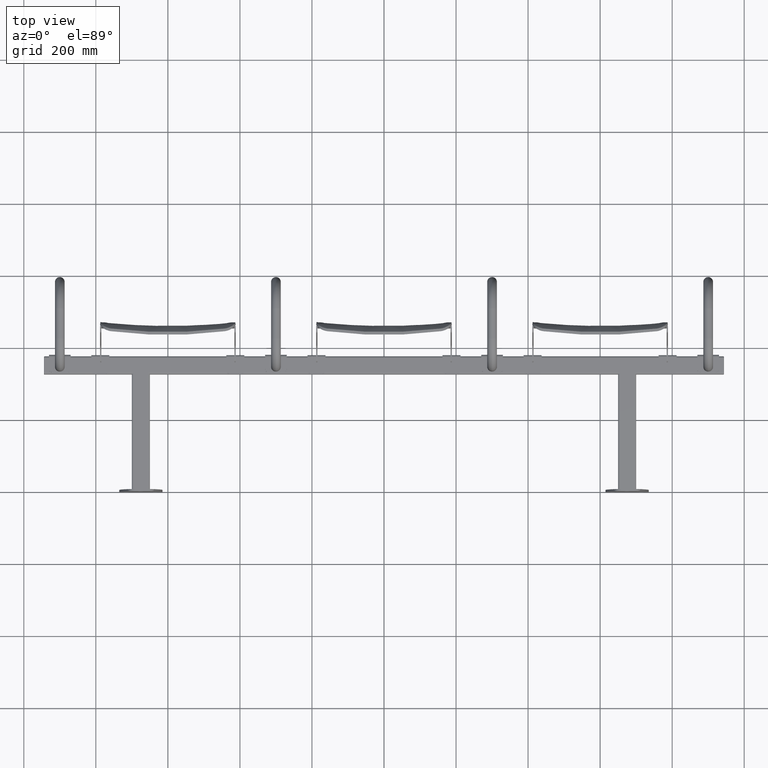
[diagram: clean part render]
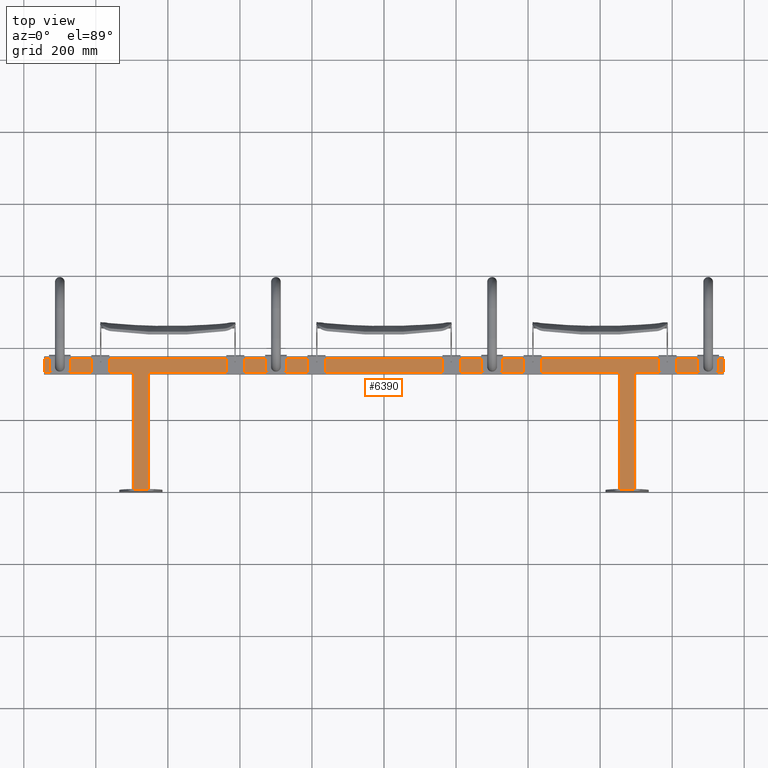
[diagram: same view with one face highlighted and labeled with its STEP entity id]
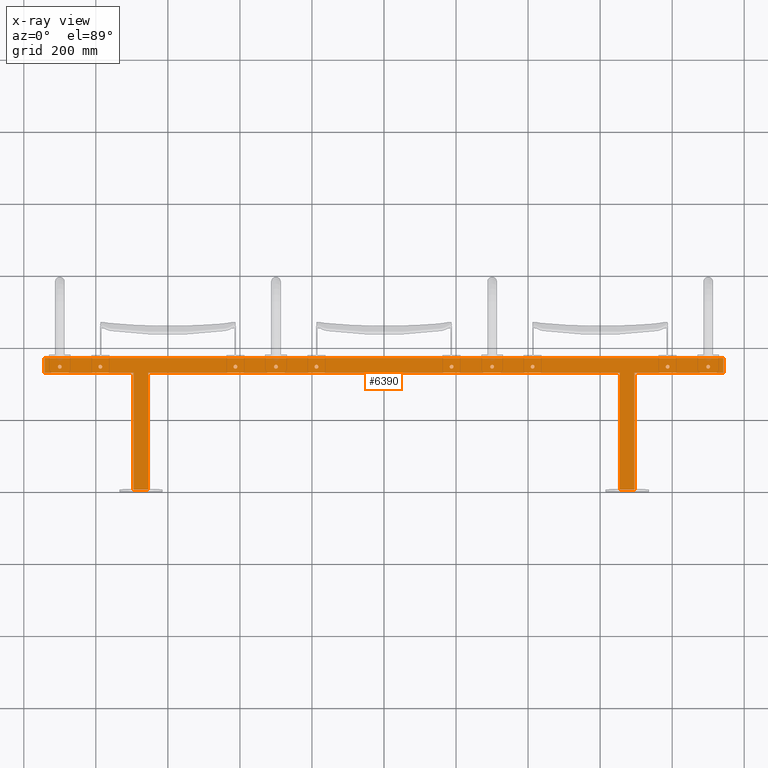
[diagram: x-ray of the same camera — body ghosted, the highlighted face saturated]
A machine part, top view. The second image highlights one B-rep face of the part: STEP entity #6390.
The next image is the same camera in x-ray: the body ghosted, the highlighted face saturated — about 1% of this face is hidden behind the body in this view.
In plain terms, the highlighted planar face has unit normal (0, 0, -1).
Its self-contained STEP definition (entity closure, byte-faithful):
#1404 = EDGE_CURVE ( 'NONE', #13371, #13397, #10330, .T. ) ;
#1408 = EDGE_CURVE ( 'NONE', #7263, #7281, #10335, .T. ) ;
#1419 = EDGE_CURVE ( 'NONE', #7280, #7206, #10351, .T. ) ;
#1423 = EDGE_CURVE ( 'NONE', #13499, #7233, #10349, .T. ) ;
#1442 = EDGE_CURVE ( 'NONE', #7294, #13480, #7566, .T. ) ;
#1447 = EDGE_CURVE ( 'NONE', #13454, #13415, #7563, .T. ) ;
#1455 = EDGE_CURVE ( 'NONE', #7272, #13437, #7570, .T. ) ;
#1464 = EDGE_CURVE ( 'NONE', #13333, #13332, #7579, .T. ) ;
#1470 = EDGE_CURVE ( 'NONE', #13376, #7270, #7581, .T. ) ;
#1504 = EDGE_CURVE ( 'NONE', #13405, #7289, #7611, .T. ) ;
#1794 = FACE_BOUND ( 'NONE', #5955, .T. ) ;
#1795 = FACE_BOUND ( 'NONE', #5879, .T. ) ;
#1796 = FACE_BOUND ( 'NONE', #9207, .T. ) ;
#1797 = FACE_BOUND ( 'NONE', #8984, .T. ) ;
#1798 = FACE_BOUND ( 'NONE', #5957, .T. ) ;
#1799 = FACE_OUTER_BOUND ( 'NONE', #9216, .T. ) ;
#1800 = FACE_BOUND ( 'NONE', #8992, .T. ) ;
#1801 = FACE_BOUND ( 'NONE', #5898, .T. ) ;
#1802 = FACE_BOUND ( 'NONE', #8983, .T. ) ;
#1803 = FACE_BOUND ( 'NONE', #8975, .T. ) ;
#1804 = FACE_BOUND ( 'NONE', #8964, .T. ) ;
#2910 = PLANE ( 'NONE',  #6801 ) ;
#2912 = DIRECTION ( 'NONE',  ( 0.0000000000000000000, 0.0000000000000000000, -1.000000000000000000 ) ) ;
#2917 = CARTESIAN_POINT ( 'NONE',  ( 0.0000000000000000000, 0.0000000000000000000, 25.00000000000000000 ) ) ;
#2918 = DIRECTION ( 'NONE',  ( -1.000000000000000000, 0.0000000000000000000, -0.0000000000000000000 ) ) ;
#3147 = DIRECTION ( 'NONE',  ( 1.000000000000000000, 0.0000000000000000000, 0.0000000000000000000 ) ) ;
#3151 = DIRECTION ( 'NONE',  ( 0.0000000000000000000, 0.0000000000000000000, 1.000000000000000000 ) ) ;
#3156 = CARTESIAN_POINT ( 'NONE',  ( 412.5000000000000000, 346.9999999999999400, 25.00000000000000000 ) ) ;
#3176 = DIRECTION ( 'NONE',  ( 1.000000000000000000, 0.0000000000000000000, 0.0000000000000000000 ) ) ;
#3177 = DIRECTION ( 'NONE',  ( 0.0000000000000000000, 0.0000000000000000000, 1.000000000000000000 ) ) ;
#3178 = CARTESIAN_POINT ( 'NONE',  ( -900.0000000000000000, 347.0000000000000000, 25.00000000000000000 ) ) ;
#3181 = DIRECTION ( 'NONE',  ( 1.000000000000000000, 0.0000000000000000000, 0.0000000000000000000 ) ) ;
#3184 = DIRECTION ( 'NONE',  ( 0.0000000000000000000, 0.0000000000000000000, 1.000000000000000000 ) ) ;
#3189 = CARTESIAN_POINT ( 'NONE',  ( -300.0000000000000600, 347.0000000000000000, 25.00000000000000000 ) ) ;
#3410 = CARTESIAN_POINT ( 'NONE',  ( 299.9999999999999400, 347.0000000000000000, 25.00000000000000000 ) ) ;
#3411 = DIRECTION ( 'NONE',  ( 0.0000000000000000000, 0.0000000000000000000, 1.000000000000000000 ) ) ;
#3412 = DIRECTION ( 'NONE',  ( 1.000000000000000000, 0.0000000000000000000, 0.0000000000000000000 ) ) ;
#3413 = CARTESIAN_POINT ( 'NONE',  ( 655.0000000000000000, -4.544975507059234600E-013, 25.00000000000000000 ) ) ;
#3414 = DIRECTION ( 'NONE',  ( -6.938893903907228400E-016, -1.000000000000000000, 0.0000000000000000000 ) ) ;
#3423 = CARTESIAN_POINT ( 'NONE',  ( -655.0000000000000000, -4.544975507059234600E-013, 25.00000000000000000 ) ) ;
#3424 = DIRECTION ( 'NONE',  ( -6.938893903907228400E-016, 1.000000000000000000, 0.0000000000000000000 ) ) ;
#3503 = CARTESIAN_POINT ( 'NONE',  ( -294.7500000000000600, 347.0000000000000000, 25.00000000000000000 ) ) ;
#3508 = CARTESIAN_POINT ( 'NONE',  ( -305.2500000000000000, 347.0000000000000000, 25.00000000000000000 ) ) ;
#3518 = CARTESIAN_POINT ( 'NONE',  ( -942.0000000000000000, 371.0000000000000000, 25.00000000000000000 ) ) ;
#3529 = CARTESIAN_POINT ( 'NONE',  ( -695.0000000000000000, 6.000000000000002700, 25.00000000000000000 ) ) ;
#3534 = CARTESIAN_POINT ( 'NONE',  ( -655.0000000000000000, 6.000000000000000000, 25.00000000000000000 ) ) ;
#3544 = CARTESIAN_POINT ( 'NONE',  ( -792.7500000000001100, 346.9999999999999400, 25.00000000000000000 ) ) ;
#3549 = CARTESIAN_POINT ( 'NONE',  ( 407.2499999999999400, 346.9999999999999400, 25.00000000000000000 ) ) ;
#3570 = CARTESIAN_POINT ( 'NONE',  ( -782.2499999999998900, 346.9999999999999400, 25.00000000000000000 ) ) ;
#3578 = CARTESIAN_POINT ( 'NONE',  ( -905.2500000000000000, 347.0000000000000000, 25.00000000000000000 ) ) ;
#3588 = CARTESIAN_POINT ( 'NONE',  ( 905.2499999999997700, 347.0000000000000000, 25.00000000000000000 ) ) ;
#3589 = CARTESIAN_POINT ( 'NONE',  ( 942.0000000000000000, 371.0000000000000000, 25.00000000000000000 ) ) ;
#3610 = CARTESIAN_POINT ( 'NONE',  ( 792.7500000000000000, 347.0000000000000000, 25.00000000000000000 ) ) ;
#3627 = CARTESIAN_POINT ( 'NONE',  ( 894.7499999999997700, 347.0000000000000000, 25.00000000000000000 ) ) ;
#3646 = CARTESIAN_POINT ( 'NONE',  ( -694.9999999999998900, 331.0000000000000000, 25.00000000000000000 ) ) ;
#3653 = CARTESIAN_POINT ( 'NONE',  ( 305.2499999999998900, 347.0000000000000000, 25.00000000000000000 ) ) ;
#3672 = CARTESIAN_POINT ( 'NONE',  ( -192.7500000000000600, 346.9999999999999400, 25.00000000000000000 ) ) ;
#4814 = DIRECTION ( 'NONE',  ( 0.0000000000000000000, 0.0000000000000000000, 1.000000000000000000 ) ) ;
#4815 = CARTESIAN_POINT ( 'NONE',  ( 787.5000000000000000, 347.0000000000000000, 25.00000000000000000 ) ) ;
#4817 = DIRECTION ( 'NONE',  ( 1.000000000000000000, 0.0000000000000000000, 0.0000000000000000000 ) ) ;
#4819 = DIRECTION ( 'NONE',  ( 0.0000000000000000000, 0.0000000000000000000, 1.000000000000000000 ) ) ;
#4822 = CARTESIAN_POINT ( 'NONE',  ( 899.9999999999997700, 347.0000000000000000, 25.00000000000000000 ) ) ;
#4964 = DIRECTION ( 'NONE',  ( 1.000000000000000000, 0.0000000000000000000, 0.0000000000000000000 ) ) ;
#4965 = DIRECTION ( 'NONE',  ( 0.0000000000000000000, 0.0000000000000000000, 1.000000000000000000 ) ) ;
#4966 = CARTESIAN_POINT ( 'NONE',  ( 299.9999999999999400, 347.0000000000000000, 25.00000000000000000 ) ) ;
#4967 = DIRECTION ( 'NONE',  ( 1.000000000000000000, 0.0000000000000000000, 0.0000000000000000000 ) ) ;
#4990 = DIRECTION ( 'NONE',  ( 1.000000000000000000, 0.0000000000000000000, 0.0000000000000000000 ) ) ;
#4991 = DIRECTION ( 'NONE',  ( 0.0000000000000000000, 0.0000000000000000000, 1.000000000000000000 ) ) ;
#4992 = CARTESIAN_POINT ( 'NONE',  ( -187.5000000000000000, 346.9999999999999400, 25.00000000000000000 ) ) ;
#4995 = DIRECTION ( 'NONE',  ( 1.000000000000000000, 0.0000000000000000000, 0.0000000000000000000 ) ) ;
#4996 = DIRECTION ( 'NONE',  ( 0.0000000000000000000, 0.0000000000000000000, 1.000000000000000000 ) ) ;
#4997 = CARTESIAN_POINT ( 'NONE',  ( -412.5000000000000000, 347.0000000000000000, 25.00000000000000000 ) ) ;
#5007 = DIRECTION ( 'NONE',  ( 1.000000000000000000, 0.0000000000000000000, 0.0000000000000000000 ) ) ;
#5009 = DIRECTION ( 'NONE',  ( 0.0000000000000000000, 0.0000000000000000000, 1.000000000000000000 ) ) ;
#5010 = CARTESIAN_POINT ( 'NONE',  ( 187.5000000000000000, 347.0000000000000000, 25.00000000000000000 ) ) ;
#5014 = DIRECTION ( 'NONE',  ( 1.000000000000000000, 0.0000000000000000000, 0.0000000000000000000 ) ) ;
#5015 = DIRECTION ( 'NONE',  ( 0.0000000000000000000, 0.0000000000000000000, 1.000000000000000000 ) ) ;
#5016 = CARTESIAN_POINT ( 'NONE',  ( -787.5000000000000000, 346.9999999999999400, 25.00000000000000000 ) ) ;
#5879 = EDGE_LOOP ( 'NONE', ( #9260, #9251 ) ) ;
#5898 = EDGE_LOOP ( 'NONE', ( #8869, #8870 ) ) ;
#5955 = EDGE_LOOP ( 'NONE', ( #9250, #9243 ) ) ;
#5957 = EDGE_LOOP ( 'NONE', ( #9242, #9295 ) ) ;
#6390 = ADVANCED_FACE ( 'NONE', ( #1794, #1798, #1795, #1797, #1796, #1799, #1800, #1801, #1802, #1803, #1804 ), #2910, .F. ) ;
#6801 = AXIS2_PLACEMENT_3D ( 'NONE', #2917, #2912, #2918 ) ;
#6854 = EDGE_CURVE ( 'NONE', #13332, #13333, #13133, .T. ) ;
#6855 = EDGE_CURVE ( 'NONE', #13415, #13454, #13131, .T. ) ;
#7135 = AXIS2_PLACEMENT_3D ( 'NONE', #5016, #5015, #5014 ) ;
#7136 = AXIS2_PLACEMENT_3D ( 'NONE', #5010, #5009, #5007 ) ;
#7138 = AXIS2_PLACEMENT_3D ( 'NONE', #4997, #4996, #4995 ) ;
#7139 = AXIS2_PLACEMENT_3D ( 'NONE', #4992, #4991, #4990 ) ;
#7145 = AXIS2_PLACEMENT_3D ( 'NONE', #4966, #4965, #4964 ) ;
#7147 = AXIS2_PLACEMENT_3D ( 'NONE', #4822, #4819, #4817 ) ;
#7148 = AXIS2_PLACEMENT_3D ( 'NONE', #4815, #4814, #4967 ) ;
#7151 = AXIS2_PLACEMENT_3D ( 'NONE', #3189, #3184, #3181 ) ;
#7152 = AXIS2_PLACEMENT_3D ( 'NONE', #3156, #3151, #3147 ) ;
#7158 = AXIS2_PLACEMENT_3D ( 'NONE', #3178, #3177, #3176 ) ;
#7172 = ORIENTED_EDGE ( 'NONE', *, *, #7548, .T. ) ;
#7206 = VERTEX_POINT ( 'NONE', #10482 ) ;
#7220 = VERTEX_POINT ( 'NONE', #10500 ) ;
#7231 = VERTEX_POINT ( 'NONE', #10511 ) ;
#7233 = VERTEX_POINT ( 'NONE', #10513 ) ;
#7238 = VERTEX_POINT ( 'NONE', #10518 ) ;
#7239 = VERTEX_POINT ( 'NONE', #10519 ) ;
#7241 = VERTEX_POINT ( 'NONE', #10521 ) ;
#7263 = VERTEX_POINT ( 'NONE', #10543 ) ;
#7266 = VERTEX_POINT ( 'NONE', #10546 ) ;
#7270 = VERTEX_POINT ( 'NONE', #10550 ) ;
#7272 = VERTEX_POINT ( 'NONE', #10552 ) ;
#7280 = VERTEX_POINT ( 'NONE', #10560 ) ;
#7281 = VERTEX_POINT ( 'NONE', #10561 ) ;
#7289 = VERTEX_POINT ( 'NONE', #10569 ) ;
#7294 = VERTEX_POINT ( 'NONE', #10574 ) ;
#7311 = VERTEX_POINT ( 'NONE', #10591 ) ;
#7492 = EDGE_CURVE ( 'NONE', #7281, #7263, #11604, .T. ) ;
#7499 = EDGE_CURVE ( 'NONE', #7220, #7241, #11603, .T. ) ;
#7502 = EDGE_CURVE ( 'NONE', #13437, #7272, #11617, .T. ) ;
#7508 = EDGE_CURVE ( 'NONE', #7289, #13405, #11625, .T. ) ;
#7509 = EDGE_CURVE ( 'NONE', #7238, #7239, #11629, .T. ) ;
#7510 = EDGE_CURVE ( 'NONE', #7206, #7280, #11630, .T. ) ;
#7521 = EDGE_CURVE ( 'NONE', #7266, #7220, #11651, .T. ) ;
#7523 = EDGE_CURVE ( 'NONE', #13473, #13356, #11655, .T. ) ;
#7544 = EDGE_CURVE ( 'NONE', #13356, #13361, #11690, .T. ) ;
#7546 = EDGE_CURVE ( 'NONE', #7311, #13473, #11693, .T. ) ;
#7547 = EDGE_CURVE ( 'NONE', #13345, #7311, #11694, .T. ) ;
#7548 = EDGE_CURVE ( 'NONE', #13416, #13345, #11696, .T. ) ;
#7549 = EDGE_CURVE ( 'NONE', #7231, #13416, #11698, .T. ) ;
#7550 = EDGE_CURVE ( 'NONE', #7241, #7231, #11700, .T. ) ;
#7551 = EDGE_CURVE ( 'NONE', #13397, #13371, #11702, .T. ) ;
#7552 = EDGE_CURVE ( 'NONE', #7233, #13499, #11704, .T. ) ;
#7553 = EDGE_CURVE ( 'NONE', #7270, #13376, #11705, .T. ) ;
#7563 = CIRCLE ( 'NONE', #7147, 5.249999999999976900 ) ;
#7566 = CIRCLE ( 'NONE', #7145, 5.249999999999976900 ) ;
#7570 = CIRCLE ( 'NONE', #7148, 5.249999999999976900 ) ;
#7579 = CIRCLE ( 'NONE', #7151, 5.249999999999976900 ) ;
#7581 = CIRCLE ( 'NONE', #7152, 5.250000000000032000 ) ;
#7611 = CIRCLE ( 'NONE', #7158, 5.249999999999976900 ) ;
#8864 = ORIENTED_EDGE ( 'NONE', *, *, #1419, .F. ) ;
#8865 = ORIENTED_EDGE ( 'NONE', *, *, #7510, .F. ) ;
#8866 = ORIENTED_EDGE ( 'NONE', *, *, #1504, .F. ) ;
#8867 = ORIENTED_EDGE ( 'NONE', *, *, #7508, .F. ) ;
#8869 = ORIENTED_EDGE ( 'NONE', *, *, #1408, .F. ) ;
#8870 = ORIENTED_EDGE ( 'NONE', *, *, #7492, .F. ) ;
#8875 = ORIENTED_EDGE ( 'NONE', *, *, #1455, .F. ) ;
#8876 = ORIENTED_EDGE ( 'NONE', *, *, #7502, .F. ) ;
#8877 = ORIENTED_EDGE ( 'NONE', *, *, #1442, .F. ) ;
#8878 = ORIENTED_EDGE ( 'NONE', *, *, #9051, .F. ) ;
#8964 = EDGE_LOOP ( 'NONE', ( #8875, #8876 ) ) ;
#8975 = EDGE_LOOP ( 'NONE', ( #8877, #8878 ) ) ;
#8983 = EDGE_LOOP ( 'NONE', ( #8866, #8867 ) ) ;
#8984 = EDGE_LOOP ( 'NONE', ( #9245, #9241 ) ) ;
#8992 = EDGE_LOOP ( 'NONE', ( #8864, #8865 ) ) ;
#9051 = EDGE_CURVE ( 'NONE', #13480, #7294, #12967, .T. ) ;
#9053 = EDGE_CURVE ( 'NONE', #7239, #7266, #12970, .T. ) ;
#9061 = EDGE_CURVE ( 'NONE', #13361, #7238, #12983, .T. ) ;
#9207 = EDGE_LOOP ( 'NONE', ( #9237, #9220 ) ) ;
#9216 = EDGE_LOOP ( 'NONE', ( #9229, #9236, #7172, #9302, #9350, #9226, #9244, #9246, #9238, #9233, #9219, #9330 ) ) ;
#9219 = ORIENTED_EDGE ( 'NONE', *, *, #7521, .T. ) ;
#9220 = ORIENTED_EDGE ( 'NONE', *, *, #7551, .F. ) ;
#9226 = ORIENTED_EDGE ( 'NONE', *, *, #7523, .T. ) ;
#9229 = ORIENTED_EDGE ( 'NONE', *, *, #7550, .T. ) ;
#9233 = ORIENTED_EDGE ( 'NONE', *, *, #9053, .T. ) ;
#9236 = ORIENTED_EDGE ( 'NONE', *, *, #7549, .T. ) ;
#9237 = ORIENTED_EDGE ( 'NONE', *, *, #1404, .F. ) ;
#9238 = ORIENTED_EDGE ( 'NONE', *, *, #7509, .T. ) ;
#9241 = ORIENTED_EDGE ( 'NONE', *, *, #7552, .F. ) ;
#9242 = ORIENTED_EDGE ( 'NONE', *, *, #1464, .F. ) ;
#9243 = ORIENTED_EDGE ( 'NONE', *, *, #6855, .F. ) ;
#9244 = ORIENTED_EDGE ( 'NONE', *, *, #7544, .T. ) ;
#9245 = ORIENTED_EDGE ( 'NONE', *, *, #1423, .F. ) ;
#9246 = ORIENTED_EDGE ( 'NONE', *, *, #9061, .T. ) ;
#9250 = ORIENTED_EDGE ( 'NONE', *, *, #1447, .F. ) ;
#9251 = ORIENTED_EDGE ( 'NONE', *, *, #7553, .F. ) ;
#9260 = ORIENTED_EDGE ( 'NONE', *, *, #1470, .F. ) ;
#9295 = ORIENTED_EDGE ( 'NONE', *, *, #6854, .F. ) ;
#9302 = ORIENTED_EDGE ( 'NONE', *, *, #7547, .T. ) ;
#9330 = ORIENTED_EDGE ( 'NONE', *, *, #7499, .T. ) ;
#9350 = ORIENTED_EDGE ( 'NONE', *, *, #7546, .T. ) ;
#9772 = CARTESIAN_POINT ( 'NONE',  ( -300.0000000000000600, 347.0000000000000000, 25.00000000000000000 ) ) ;
#9773 = DIRECTION ( 'NONE',  ( 0.0000000000000000000, 0.0000000000000000000, 1.000000000000000000 ) ) ;
#9774 = DIRECTION ( 'NONE',  ( 1.000000000000000000, 0.0000000000000000000, 0.0000000000000000000 ) ) ;
#9775 = CARTESIAN_POINT ( 'NONE',  ( 899.9999999999997700, 347.0000000000000000, 25.00000000000000000 ) ) ;
#9776 = DIRECTION ( 'NONE',  ( 0.0000000000000000000, 0.0000000000000000000, 1.000000000000000000 ) ) ;
#9777 = DIRECTION ( 'NONE',  ( 1.000000000000000000, 0.0000000000000000000, 0.0000000000000000000 ) ) ;
#10330 = CIRCLE ( 'NONE', #7135, 5.250000000000087900 ) ;
#10335 = CIRCLE ( 'NONE', #7136, 5.250000000000004400 ) ;
#10349 = CIRCLE ( 'NONE', #7139, 5.250000000000060400 ) ;
#10351 = CIRCLE ( 'NONE', #7138, 5.249999999999976900 ) ;
#10482 = CARTESIAN_POINT ( 'NONE',  ( -407.2500000000000000, 347.0000000000000000, 25.00000000000000000 ) ) ;
#10500 = CARTESIAN_POINT ( 'NONE',  ( 695.0000000000001100, 6.000000000000002700, 25.00000000000000000 ) ) ;
#10511 = CARTESIAN_POINT ( 'NONE',  ( 942.0000000000000000, 331.0000000000000000, 25.00000000000000000 ) ) ;
#10513 = CARTESIAN_POINT ( 'NONE',  ( -182.2499999999999400, 346.9999999999999400, 25.00000000000000000 ) ) ;
#10518 = CARTESIAN_POINT ( 'NONE',  ( -655.0000000000002300, 331.0000000000000000, 25.00000000000000000 ) ) ;
#10519 = CARTESIAN_POINT ( 'NONE',  ( 655.0000000000002300, 331.0000000000000000, 25.00000000000000000 ) ) ;
#10521 = CARTESIAN_POINT ( 'NONE',  ( 694.9999999999998900, 331.0000000000000000, 25.00000000000000000 ) ) ;
#10543 = CARTESIAN_POINT ( 'NONE',  ( 182.2500000000000000, 347.0000000000000000, 25.00000000000000000 ) ) ;
#10546 = CARTESIAN_POINT ( 'NONE',  ( 655.0000000000000000, 6.000000000000002700, 25.00000000000000000 ) ) ;
#10550 = CARTESIAN_POINT ( 'NONE',  ( 417.7500000000000000, 346.9999999999999400, 25.00000000000000000 ) ) ;
#10552 = CARTESIAN_POINT ( 'NONE',  ( 782.2500000000000000, 347.0000000000000000, 25.00000000000000000 ) ) ;
#10560 = CARTESIAN_POINT ( 'NONE',  ( -417.7499999999999400, 347.0000000000000000, 25.00000000000000000 ) ) ;
#10561 = CARTESIAN_POINT ( 'NONE',  ( 192.7500000000000000, 347.0000000000000000, 25.00000000000000000 ) ) ;
#10569 = CARTESIAN_POINT ( 'NONE',  ( -894.7500000000000000, 347.0000000000000000, 25.00000000000000000 ) ) ;
#10574 = CARTESIAN_POINT ( 'NONE',  ( 294.7499999999999400, 347.0000000000000000, 25.00000000000000000 ) ) ;
#10591 = CARTESIAN_POINT ( 'NONE',  ( -942.0000000000000000, 331.0000000000000000, 25.00000000000000000 ) ) ;
#10598 = CARTESIAN_POINT ( 'NONE',  ( 187.5000000000000000, 347.0000000000000000, 25.00000000000000000 ) ) ;
#10599 = DIRECTION ( 'NONE',  ( 0.0000000000000000000, 0.0000000000000000000, 1.000000000000000000 ) ) ;
#10600 = DIRECTION ( 'NONE',  ( 1.000000000000000000, 0.0000000000000000000, 0.0000000000000000000 ) ) ;
#10610 = CARTESIAN_POINT ( 'NONE',  ( 695.0000000000001100, 4.822531263215523700E-013, 25.00000000000000000 ) ) ;
#10615 = DIRECTION ( 'NONE',  ( -6.938893903907228400E-016, 1.000000000000000000, 0.0000000000000000000 ) ) ;
#10620 = CARTESIAN_POINT ( 'NONE',  ( 787.5000000000000000, 347.0000000000000000, 25.00000000000000000 ) ) ;
#10621 = DIRECTION ( 'NONE',  ( 0.0000000000000000000, 0.0000000000000000000, 1.000000000000000000 ) ) ;
#10622 = DIRECTION ( 'NONE',  ( 1.000000000000000000, 0.0000000000000000000, 0.0000000000000000000 ) ) ;
#10630 = DIRECTION ( 'NONE',  ( 1.000000000000000000, 0.0000000000000000000, 0.0000000000000000000 ) ) ;
#10633 = CARTESIAN_POINT ( 'NONE',  ( 0.0000000000000000000, 331.0000000000000000, 25.00000000000000000 ) ) ;
#10636 = CARTESIAN_POINT ( 'NONE',  ( -900.0000000000000000, 347.0000000000000000, 25.00000000000000000 ) ) ;
#10637 = DIRECTION ( 'NONE',  ( 0.0000000000000000000, 0.0000000000000000000, 1.000000000000000000 ) ) ;
#10638 = DIRECTION ( 'NONE',  ( 1.000000000000000000, 0.0000000000000000000, 0.0000000000000000000 ) ) ;
#10641 = CARTESIAN_POINT ( 'NONE',  ( -412.5000000000000000, 347.0000000000000000, 25.00000000000000000 ) ) ;
#10642 = DIRECTION ( 'NONE',  ( 0.0000000000000000000, 0.0000000000000000000, 1.000000000000000000 ) ) ;
#10643 = DIRECTION ( 'NONE',  ( 1.000000000000000000, 0.0000000000000000000, 0.0000000000000000000 ) ) ;
#10662 = CARTESIAN_POINT ( 'NONE',  ( 650.0000000000000000, 6.000000000000002700, 25.00000000000000000 ) ) ;
#10663 = DIRECTION ( 'NONE',  ( 1.000000000000000000, 0.0000000000000000000, 0.0000000000000000000 ) ) ;
#10666 = CARTESIAN_POINT ( 'NONE',  ( -695.0000000000000000, 2.411265631607761900E-013, 25.00000000000000000 ) ) ;
#10667 = DIRECTION ( 'NONE',  ( -3.469446951953614200E-016, -1.000000000000000000, 0.0000000000000000000 ) ) ;
#10708 = CARTESIAN_POINT ( 'NONE',  ( -700.0000000000000000, 6.000000000000002700, 25.00000000000000000 ) ) ;
#10709 = DIRECTION ( 'NONE',  ( 1.000000000000000000, -5.204170427930428700E-017, 0.0000000000000000000 ) ) ;
#10713 = CARTESIAN_POINT ( 'NONE',  ( 0.0000000000000000000, 331.0000000000000000, 25.00000000000000000 ) ) ;
#10714 = DIRECTION ( 'NONE',  ( 1.000000000000000000, 0.0000000000000000000, 0.0000000000000000000 ) ) ;
#10721 = CARTESIAN_POINT ( 'NONE',  ( -942.0000000000000000, 0.0000000000000000000, 25.00000000000000000 ) ) ;
#10722 = DIRECTION ( 'NONE',  ( 0.0000000000000000000, -1.000000000000000000, 0.0000000000000000000 ) ) ;
#10723 = CARTESIAN_POINT ( 'NONE',  ( 0.0000000000000000000, 371.0000000000000000, 25.00000000000000000 ) ) ;
#10724 = DIRECTION ( 'NONE',  ( -1.000000000000000000, 0.0000000000000000000, 0.0000000000000000000 ) ) ;
#10725 = CARTESIAN_POINT ( 'NONE',  ( 942.0000000000000000, 0.0000000000000000000, 25.00000000000000000 ) ) ;
#10726 = DIRECTION ( 'NONE',  ( 0.0000000000000000000, 1.000000000000000000, 0.0000000000000000000 ) ) ;
#10727 = CARTESIAN_POINT ( 'NONE',  ( 0.0000000000000000000, 331.0000000000000000, 25.00000000000000000 ) ) ;
#10728 = DIRECTION ( 'NONE',  ( 1.000000000000000000, 0.0000000000000000000, 0.0000000000000000000 ) ) ;
#10729 = CARTESIAN_POINT ( 'NONE',  ( -787.5000000000000000, 346.9999999999999400, 25.00000000000000000 ) ) ;
#10730 = DIRECTION ( 'NONE',  ( 0.0000000000000000000, 0.0000000000000000000, 1.000000000000000000 ) ) ;
#10731 = DIRECTION ( 'NONE',  ( 1.000000000000000000, 0.0000000000000000000, 0.0000000000000000000 ) ) ;
#10734 = CARTESIAN_POINT ( 'NONE',  ( -187.5000000000000000, 346.9999999999999400, 25.00000000000000000 ) ) ;
#10735 = DIRECTION ( 'NONE',  ( 0.0000000000000000000, 0.0000000000000000000, 1.000000000000000000 ) ) ;
#10736 = DIRECTION ( 'NONE',  ( 1.000000000000000000, 0.0000000000000000000, 0.0000000000000000000 ) ) ;
#10737 = CARTESIAN_POINT ( 'NONE',  ( 412.5000000000000000, 346.9999999999999400, 25.00000000000000000 ) ) ;
#10738 = DIRECTION ( 'NONE',  ( 0.0000000000000000000, 0.0000000000000000000, 1.000000000000000000 ) ) ;
#10739 = DIRECTION ( 'NONE',  ( 1.000000000000000000, 0.0000000000000000000, 0.0000000000000000000 ) ) ;
#11603 = LINE ( 'NONE', #10610, #11614 ) ;
#11604 = CIRCLE ( 'NONE', #11960, 5.250000000000004400 ) ;
#11614 = VECTOR ( 'NONE', #10615, 1000.000000000000000 ) ;
#11617 = CIRCLE ( 'NONE', #11963, 5.249999999999976900 ) ;
#11625 = CIRCLE ( 'NONE', #11965, 5.249999999999976900 ) ;
#11629 = LINE ( 'NONE', #10633, #11631 ) ;
#11630 = CIRCLE ( 'NONE', #11966, 5.249999999999976900 ) ;
#11631 = VECTOR ( 'NONE', #10630, 1000.000000000000000 ) ;
#11651 = LINE ( 'NONE', #10662, #11654 ) ;
#11654 = VECTOR ( 'NONE', #10663, 1000.000000000000000 ) ;
#11655 = LINE ( 'NONE', #10666, #11658 ) ;
#11658 = VECTOR ( 'NONE', #10667, 1000.000000000000000 ) ;
#11690 = LINE ( 'NONE', #10708, #11692 ) ;
#11692 = VECTOR ( 'NONE', #10709, 1000.000000000000000 ) ;
#11693 = LINE ( 'NONE', #10713, #11695 ) ;
#11694 = LINE ( 'NONE', #10721, #11697 ) ;
#11695 = VECTOR ( 'NONE', #10714, 1000.000000000000000 ) ;
#11696 = LINE ( 'NONE', #10723, #11699 ) ;
#11697 = VECTOR ( 'NONE', #10722, 1000.000000000000000 ) ;
#11698 = LINE ( 'NONE', #10725, #11701 ) ;
#11699 = VECTOR ( 'NONE', #10724, 1000.000000000000000 ) ;
#11700 = LINE ( 'NONE', #10727, #11703 ) ;
#11701 = VECTOR ( 'NONE', #10726, 1000.000000000000000 ) ;
#11702 = CIRCLE ( 'NONE', #11976, 5.250000000000087900 ) ;
#11703 = VECTOR ( 'NONE', #10728, 1000.000000000000000 ) ;
#11704 = CIRCLE ( 'NONE', #11977, 5.250000000000060400 ) ;
#11705 = CIRCLE ( 'NONE', #11978, 5.250000000000032000 ) ;
#11877 = AXIS2_PLACEMENT_3D ( 'NONE', #9775, #9776, #9777 ) ;
#11881 = AXIS2_PLACEMENT_3D ( 'NONE', #9772, #9773, #9774 ) ;
#11960 = AXIS2_PLACEMENT_3D ( 'NONE', #10598, #10599, #10600 ) ;
#11963 = AXIS2_PLACEMENT_3D ( 'NONE', #10620, #10621, #10622 ) ;
#11965 = AXIS2_PLACEMENT_3D ( 'NONE', #10636, #10637, #10638 ) ;
#11966 = AXIS2_PLACEMENT_3D ( 'NONE', #10641, #10642, #10643 ) ;
#11976 = AXIS2_PLACEMENT_3D ( 'NONE', #10729, #10730, #10731 ) ;
#11977 = AXIS2_PLACEMENT_3D ( 'NONE', #10734, #10735, #10736 ) ;
#11978 = AXIS2_PLACEMENT_3D ( 'NONE', #10737, #10738, #10739 ) ;
#12018 = AXIS2_PLACEMENT_3D ( 'NONE', #3410, #3411, #3412 ) ;
#12967 = CIRCLE ( 'NONE', #12018, 5.249999999999976900 ) ;
#12970 = LINE ( 'NONE', #3413, #12973 ) ;
#12973 = VECTOR ( 'NONE', #3414, 1000.000000000000000 ) ;
#12983 = LINE ( 'NONE', #3423, #12984 ) ;
#12984 = VECTOR ( 'NONE', #3424, 1000.000000000000000 ) ;
#13131 = CIRCLE ( 'NONE', #11877, 5.249999999999976900 ) ;
#13133 = CIRCLE ( 'NONE', #11881, 5.249999999999976900 ) ;
#13332 = VERTEX_POINT ( 'NONE', #3503 ) ;
#13333 = VERTEX_POINT ( 'NONE', #3508 ) ;
#13345 = VERTEX_POINT ( 'NONE', #3518 ) ;
#13356 = VERTEX_POINT ( 'NONE', #3529 ) ;
#13361 = VERTEX_POINT ( 'NONE', #3534 ) ;
#13371 = VERTEX_POINT ( 'NONE', #3544 ) ;
#13376 = VERTEX_POINT ( 'NONE', #3549 ) ;
#13397 = VERTEX_POINT ( 'NONE', #3570 ) ;
#13405 = VERTEX_POINT ( 'NONE', #3578 ) ;
#13415 = VERTEX_POINT ( 'NONE', #3588 ) ;
#13416 = VERTEX_POINT ( 'NONE', #3589 ) ;
#13437 = VERTEX_POINT ( 'NONE', #3610 ) ;
#13454 = VERTEX_POINT ( 'NONE', #3627 ) ;
#13473 = VERTEX_POINT ( 'NONE', #3646 ) ;
#13480 = VERTEX_POINT ( 'NONE', #3653 ) ;
#13499 = VERTEX_POINT ( 'NONE', #3672 ) ;